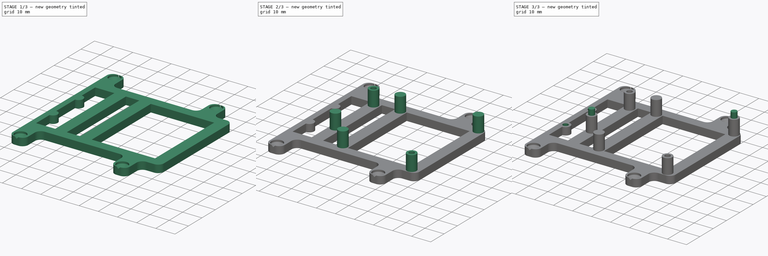
[diagram: build sequence overview — one tinted view per stage of 3, left to right]
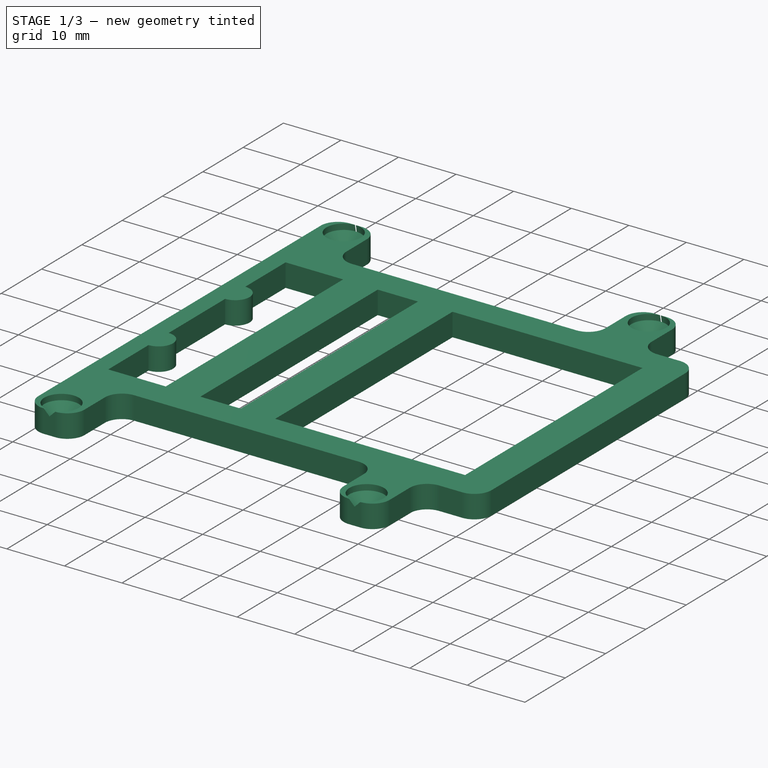
[diagram: stage 1 of 3 — iso view after this stage's code; geometry added in this stage tinted green]
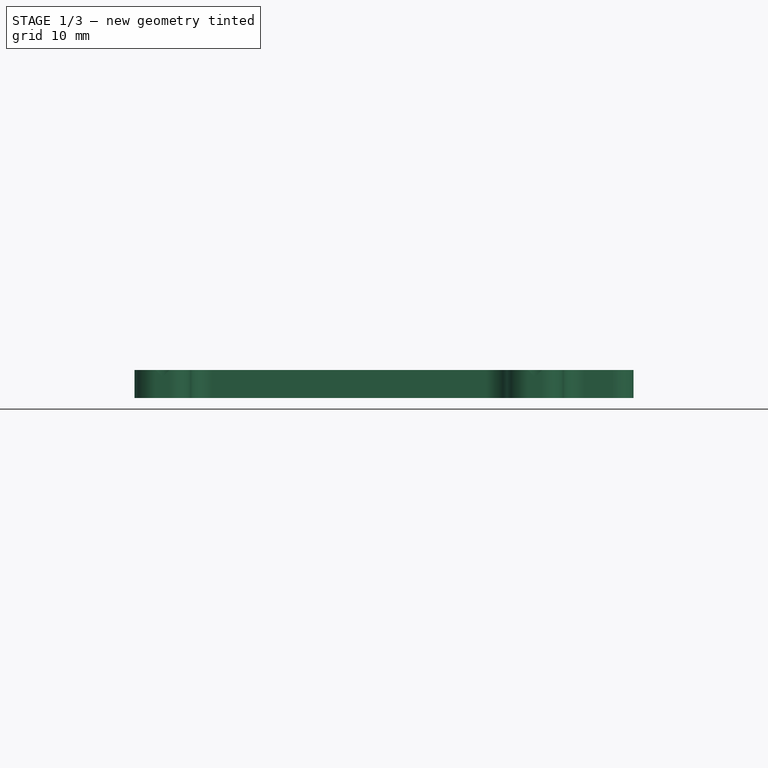
[diagram: stage 1 of 3 — front view after this stage's code; geometry added in this stage tinted green]
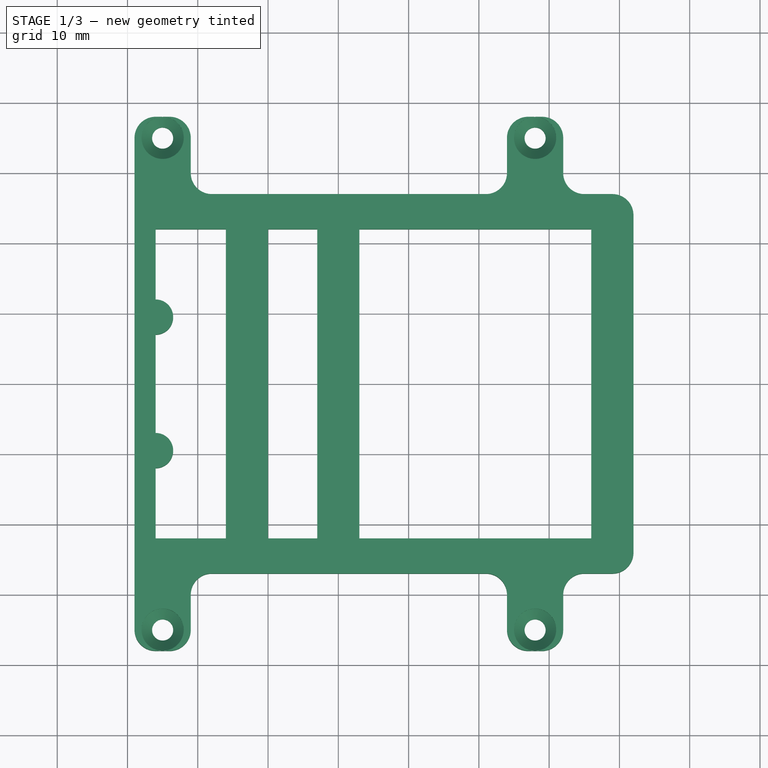
[diagram: stage 1 of 3 — top view after this stage's code; geometry added in this stage tinted green]
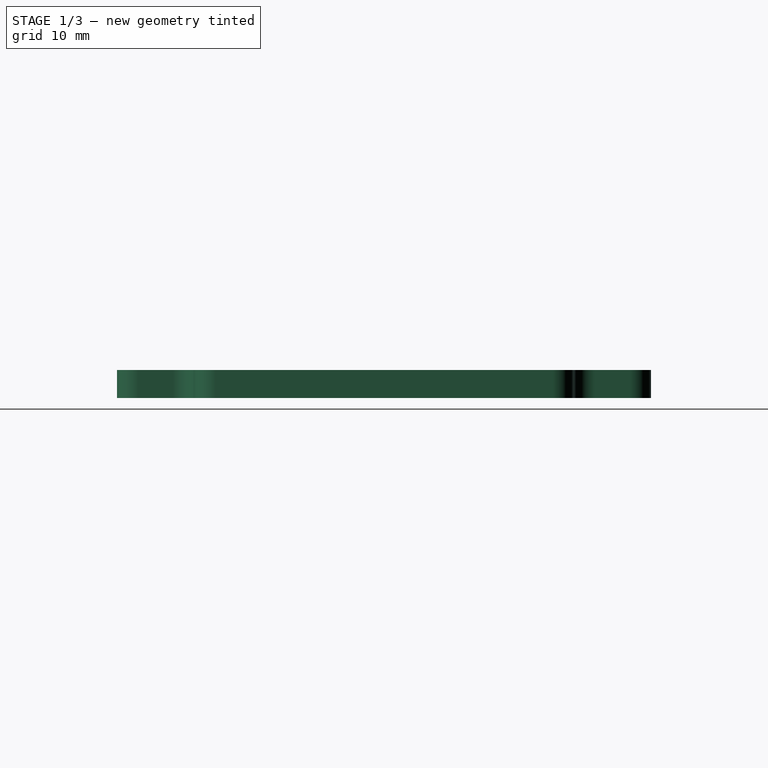
[diagram: stage 1 of 3 — right view after this stage's code; geometry added in this stage tinted green]
FCSTD DOCUMENT  (FreeCAD 0.21R33771 (Git))
Label: електронен блок (нов)
License: All rights reserved
LicenseURL: https://en.wikipedia.org/wiki/All_rights_reserved
objects: Sketcher::SketchObject×6, PartDesign::Pad×3, PartDesign::Pocket×2, PartDesign::Hole×1, PartDesign::Body×1
note: 19 computed .brp shape members not serialized (recipe doc carries the construction recipe); baked Part::Feature solids carry a one-line shape summary decoded from their .brp

FEATURE [Sketcher::SketchObject] Sketch  label="основа - чертеж"
  FullyConstrained = true
  MapMode = 5
  Support = -> [XY_Plane]
  sketch-geometry (48):
    g0: LineSegment StartX=42 StartY=-24 StartZ=0 EndX=42 EndY=24 EndZ=0
    g1: LineSegment StartX=39 StartY=27 StartZ=0 EndX=35 EndY=27 EndZ=0
    g2: LineSegment StartX=32 StartY=30 StartZ=0 EndX=32 EndY=35 EndZ=0
    g3: LineSegment StartX=29 StartY=38 StartZ=0 EndX=27 EndY=38 EndZ=0
    g4: LineSegment StartX=-29 StartY=35 StartZ=0 EndX=-29 EndY=-35 EndZ=0
    g5: LineSegment StartX=-26 StartY=-38 StartZ=0 EndX=-24 EndY=-38 EndZ=0
    g6: LineSegment StartX=32 StartY=-35 StartZ=0 EndX=32 EndY=-30 EndZ=0
    g7: LineSegment StartX=35 StartY=-27 StartZ=0 EndX=39 EndY=-27 EndZ=0
    g8: ArcOfCircle CenterX=29 CenterY=35 CenterZ=0 NormalX=0 NormalY=0 NormalZ=1 AngleXU=0 Radius=3 StartAngle=2e-16 EndAngle=1.5708
    g9: ArcOfCircle CenterX=-26 CenterY=35 CenterZ=0 NormalX=0 NormalY=0 NormalZ=1 AngleXU=0 Radius=3 StartAngle=1.5708 EndAngle=3.14159
    g10: ArcOfCircle CenterX=35 CenterY=30 CenterZ=0 NormalX=0 NormalY=0 NormalZ=1 AngleXU=0 Radius=3 StartAngle=3.14159 EndAngle=4.71239
    g11: ArcOfCircle CenterX=39 CenterY=24 CenterZ=0 NormalX=0 NormalY=0 NormalZ=1 AngleXU=0 Radius=3 StartAngle=1e-16 EndAngle=1.5708
    g12: ArcOfCircle CenterX=39 CenterY=-24 CenterZ=0 NormalX=0 NormalY=0 NormalZ=1 AngleXU=0 Radius=3 StartAngle=4.71239 EndAngle=6.28319
    g13: ArcOfCircle CenterX=35 CenterY=-30 CenterZ=0 NormalX=0 NormalY=0 NormalZ=1 AngleXU=0 Radius=3 StartAngle=1.5708 EndAngle=3.14159
    g14: ArcOfCircle CenterX=29 CenterY=-35 CenterZ=0 NormalX=0 NormalY=0 NormalZ=1 AngleXU=0 Radius=3 StartAngle=4.71239 EndAngle=6.28319
    g15: ArcOfCircle CenterX=-26 CenterY=-35 CenterZ=0 NormalX=0 NormalY=0 NormalZ=1 AngleXU=0 Radius=3 StartAngle=3.14159 EndAngle=4.71239
    g16: LineSegment StartX=-21 StartY=35 StartZ=0 EndX=-21 EndY=30 EndZ=0
    g17: LineSegment StartX=-18 StartY=27 StartZ=0 EndX=21 EndY=27 EndZ=0
    g18: LineSegment StartX=24 StartY=30 StartZ=0 EndX=24 EndY=35 EndZ=0
    g19: LineSegment StartX=-24 StartY=38 StartZ=0 EndX=-26 EndY=38 EndZ=0
    g20: LineSegment StartX=-21 StartY=-35 StartZ=0 EndX=-21 EndY=-30 EndZ=0
    g21: LineSegment StartX=-18 StartY=-27 StartZ=0 EndX=21 EndY=-27 EndZ=0
    g22: LineSegment StartX=24 StartY=-30 StartZ=0 EndX=24 EndY=-35 EndZ=0
    g23: LineSegment StartX=27 StartY=-38 StartZ=0 EndX=29 EndY=-38 EndZ=0
    g24: ArcOfCircle CenterX=-24 CenterY=35 CenterZ=0 NormalX=0 NormalY=0 NormalZ=1 AngleXU=0 Radius=3 StartAngle=-9e-16 EndAngle=1.5708
    g25: ArcOfCircle CenterX=27 CenterY=35 CenterZ=0 NormalX=0 NormalY=0 NormalZ=1 AngleXU=0 Radius=3 StartAngle=1.5708 EndAngle=3.14159
    g26: ArcOfCircle CenterX=-24 CenterY=-35 CenterZ=0 NormalX=0 NormalY=0 NormalZ=1 AngleXU=0 Radius=3 StartAngle=4.71239 EndAngle=6.28319
    g27: ArcOfCircle CenterX=27 CenterY=-35 CenterZ=0 NormalX=0 NormalY=0 NormalZ=1 AngleXU=0 Radius=3 StartAngle=3.14159 EndAngle=4.71239
    g28: ArcOfCircle CenterX=21 CenterY=-30 CenterZ=0 NormalX=0 NormalY=0 NormalZ=1 AngleXU=0 Radius=3 StartAngle=1e-16 EndAngle=1.5708
    g29: ArcOfCircle CenterX=-18 CenterY=-30 CenterZ=0 NormalX=0 NormalY=0 NormalZ=1 AngleXU=0 Radius=3 StartAngle=1.5708 EndAngle=3.14159
    g30: ArcOfCircle CenterX=-18 CenterY=30 CenterZ=0 NormalX=0 NormalY=0 NormalZ=1 AngleXU=0 Radius=3 StartAngle=3.14159 EndAngle=4.71239
    g31: ArcOfCircle CenterX=21 CenterY=30 CenterZ=0 NormalX=0 NormalY=0 NormalZ=1 AngleXU=0 Radius=3 StartAngle=4.71239 EndAngle=6.28319
    g32: LineSegment StartX=-16 StartY=-22 StartZ=0 EndX=-16 EndY=22 EndZ=0
    g33: LineSegment StartX=-16 StartY=22 StartZ=0 EndX=-26 EndY=22 EndZ=0
    g34: LineSegment StartX=-26 StartY=22 StartZ=0 EndX=-26 EndY=12 EndZ=0
    g35: LineSegment StartX=-26 StartY=-22 StartZ=0 EndX=-16 EndY=-22 EndZ=0
    g36: ArcOfCircle CenterX=-26 CenterY=9.5 CenterZ=0 NormalX=0 NormalY=0 NormalZ=1 AngleXU=0 Radius=2.5 StartAngle=4.71239 EndAngle=7.85398
    g37: ArcOfCircle CenterX=-26 CenterY=-9.5 CenterZ=0 NormalX=0 NormalY=0 NormalZ=1 AngleXU=0 Radius=2.5 StartAngle=4.71239 EndAngle=7.85398
    g38: LineSegment StartX=-26 StartY=7 StartZ=0 EndX=-26 EndY=-7 EndZ=0
    g39: LineSegment StartX=-26 StartY=-12 StartZ=0 EndX=-26 EndY=-22 EndZ=0
    g40: LineSegment StartX=-10 StartY=-22 StartZ=0 EndX=-10 EndY=22 EndZ=0
    g41: LineSegment StartX=-10 StartY=22 StartZ=0 EndX=-3 EndY=22 EndZ=0
    g42: LineSegment StartX=-3 StartY=22 StartZ=0 EndX=-3 EndY=-22 EndZ=0
    g43: LineSegment StartX=-3 StartY=-22 StartZ=0 EndX=-10 EndY=-22 EndZ=0
    g44: LineSegment StartX=36 StartY=-22 StartZ=0 EndX=36 EndY=22 EndZ=0
    g45: LineSegment StartX=36 StartY=22 StartZ=0 EndX=3 EndY=22 EndZ=0
    g46: LineSegment StartX=3 StartY=22 StartZ=0 EndX=3 EndY=-22 EndZ=0
    g47: LineSegment StartX=3 StartY=-22 StartZ=0 EndX=36 EndY=-22 EndZ=0
  constraints (132):
    c: Vertical(g0)
    c: Horizontal(g1)
    c: Vertical(g2)
    c: Horizontal(g3)
    c: Vertical(g4)
    c: Horizontal(g5)
    c: Vertical(g6)
    c: Horizontal(g7)
    c: Tangent(g3,g8) = -1.5708
    c: Tangent(g2,g8) = -1.5708
    c: Radius(g8) = 3
    c: DistanceX(g-1,g2) = 32
    c: DistanceY(g-1,g3) = 38
    c: Tangent(g4,g9) = -1.5708
    c: Coincident(g19,g9) = -1.5708
    c: Radius(g9) = 3
    c: Tangent(g2,g10) = 1.5708
    c: Tangent(g1,g10) = 1.5708
    c: Radius(g10) = 3
    c: DistanceY(g-1,g1) = 27
    c: Tangent(g1,g11) = -1.5708
    c: Tangent(g0,g11) = -1.5708
    c: Radius(g11) = 3
    c: DistanceX(g-1,g0) = 42
    c: Tangent(g7,g12) = -1.5708
    c: Tangent(g0,g12) = -1.5708
    c: Tangent(g7,g13) = 1.5708
    c: Tangent(g6,g13) = 1.5708
    c: Radius(g12) = 3
    c: Radius(g13) = 3
    c: Symmetric(g7,g1,g-1)
    c: Coincident(g23,g14) = -1.5708
    c: Tangent(g6,g14) = -1.5708
    c: Radius(g14) = 3
    c: Tangent(g5,g15) = -1.5708
    c: Radius(g15) = 3
    c: Vertical(g16)
    c: Horizontal(g17)
    c: Vertical(g18)
    c: Vertical(g20)
    c: Horizontal(g21)
    c: Vertical(g22)
    c: Tangent(g19,g24) = -1.5708
    c: Tangent(g16,g24) = 1.5708
    c: Radius(g24) = 3
    c: Tangent(g18,g25) = 1.5708
    c: Tangent(g3,g25) = -1.5708
    c: Tangent(g5,g26) = -1.5708
    c: Tangent(g20,g26) = -1.5708
    c: Tangent(g22,g27) = -1.5708
    c: Tangent(g23,g27) = -1.5708
    c: Tangent(g22,g28) = 1.5708
    c: Tangent(g21,g28) = 1.5708
    c: Tangent(g20,g29) = 1.5708
    c: Tangent(g21,g29) = 1.5708
    c: Tangent(g16,g30) = -1.5708
    c: Tangent(g17,g30) = -1.5708
    c: Tangent(g17,g31) = -1.5708
    c: Tangent(g18,g31) = -1.5708
    c: Horizontal(g19)
    c: DistanceY(g-1,g17) = 27
    c: Radius(g25) = 3
    c: Radius(g31) = 3
    c: Radius(g30) = 3
    c: DistanceX(g18,g2) = 8
    c: DistanceX(g4,g16) = 8
    c: DistanceY(g19) = 38
    c: DistanceY(g5,g-1) = 38
    c: Radius(g26) = 3
    c: DistanceX(g22,g6) = 8
    c: Horizontal(g23)
    c: Radius(g27) = 3
    c: Radius(g29) = 3
    c: DistanceY(g21,g-1) = 27
    c: Radius(g28) = 3
    c: DistanceY(g23,g-1) = 38
    c: DistanceX(g4,g-1) = 29
    c: Equal(g19,g5)
    c: DistanceX(g-1,g14) = 29
    c: Coincident(g32,g33)
    c: Coincident(g33,g34)
    c: Coincident(g39,g35)
    c: Coincident(g35,g32)
    c: Horizontal(g33)
    c: Horizontal(g35)
    c: Vertical(g32)
    c: Vertical(g34)
    c: DistanceY(g-1,g33) = 22
    c: DistanceX(g4,g33) = 3
    c: PointOnObject(g36,g34)
    c: PointOnObject(g37,g34)
    c: Diameter(g37) = 5
    c: Diameter(g36) = 5
    c: DistanceY(g-1,g36) = 9.5
    c: DistanceY(g37,g-1) = 9.5
    c: Coincident(g34,g36)
    c: Coincident(g38,g36)
    c: Coincident(g38,g37)
    c: Coincident(g39,g37)
    c: Vertical(g39)
    c: Coincident(g4,g15)
    c: Coincident(g40,g41)
    c: Coincident(g41,g42)
    c: Coincident(g42,g43)
    c: Coincident(g43,g40)
    c: Horizontal(g41)
    c: Horizontal(g43)
    c: Vertical(g40)
    c: Vertical(g42)
    c: DistanceY(g-1,g41) = 22
    c: DistanceX(g33,g32) = 10
    c: DistanceX(g32,g40) = 6
    c: DistanceX(g4,g37) = 3
    c: DistanceX(g4,g37) = 3
    c: Vertical(g38)
    c: DistanceX(g41,g-1) = 3
    c: Coincident(g44,g45)
    c: Coincident(g45,g46)
    c: Coincident(g46,g47)
    c: Coincident(g47,g44)
    c: Horizontal(g45)
    c: Horizontal(g47)
    c: Vertical(g44)
    c: Vertical(g46)
    c: DistanceY(g-1,g45) = 22
    c: DistanceX(g42,g46) = 6
    c: DistanceX(g44,g0) = 6
    c: DistanceX(g20,g-1) = 21
    c: DistanceY(g4,g4) = 70
    c: DistanceY(g35,g-1) = 22
    c: DistanceY(g46,g-1) = 22
    c: DistanceY(g40,g-1) = 22
FEATURE [Sketcher::SketchObject] Sketch001  label="Крепежни отвори - чертеж"
  FullyConstrained = true
  MapMode = 5
  Placement = pos=(0,0,4) rot=(0,0,1;0rad)
  sketch-geometry (4):
    g0: Circle CenterX=-25 CenterY=35 CenterZ=0 NormalX=0 NormalY=0 NormalZ=1 AngleXU=0 Radius=1.5
    g1: Circle CenterX=28 CenterY=35 CenterZ=0 NormalX=0 NormalY=0 NormalZ=1 AngleXU=0 Radius=1.5
    g2: Circle CenterX=-25 CenterY=-35 CenterZ=0 NormalX=0 NormalY=0 NormalZ=1 AngleXU=0 Radius=1.5
    g3: Circle CenterX=28 CenterY=-35 CenterZ=0 NormalX=0 NormalY=0 NormalZ=1 AngleXU=0 Radius=1.5
  constraints (10):
    c: DistanceY(g-1,g0) = 35
    c: DistanceX(g0,g-1) = 25
    c: Symmetric(g0,g2,g-1)
    c: Diameter(g0) = 3
    c: Equal(g0,g2)
    c: Equal(g2,g3)
    c: Equal(g3,g1)
    c: DistanceX(g-1,g1) = 28
    c: Symmetric(g1,g3,g-1)
    c: DistanceY(g-1,g1) = 35
FEATURE [PartDesign::Pad] Pad  label="Основа"
  Direction = (0,0,1)
  Length = 4
  Length2 = 10
  Profile = -> Sketch
  ReferenceAxis = -> Sketch [N_Axis]
  Type = 0
FEATURE [PartDesign::Hole] Hole  label="Крепежни отвори"
  BaseFeature = -> Pad
  CustomThreadClearance = 0
  Depth = 25
  DepthType = 0
  Diameter = 3
  DrillForDepth = false
  DrillPoint = 1
  DrillPointAngle = 118
  HoleCutCountersinkAngle = 90
  HoleCutCustomValues = false
  HoleCutDepth = 1
  HoleCutDiameter = 6
  HoleCutType = 3
  ModelThread = false
  Profile = -> Sketch001
  Tapered = false
  TaperedAngle = 90
  ThreadClass = 0
  ThreadDepth = 25
  ThreadDepthType = 0
  ThreadDirection = 0
  ThreadFit = 0
  ThreadSize = 0
  ThreadType = 0
  Threaded = false
  UseCustomThreadClearance = false
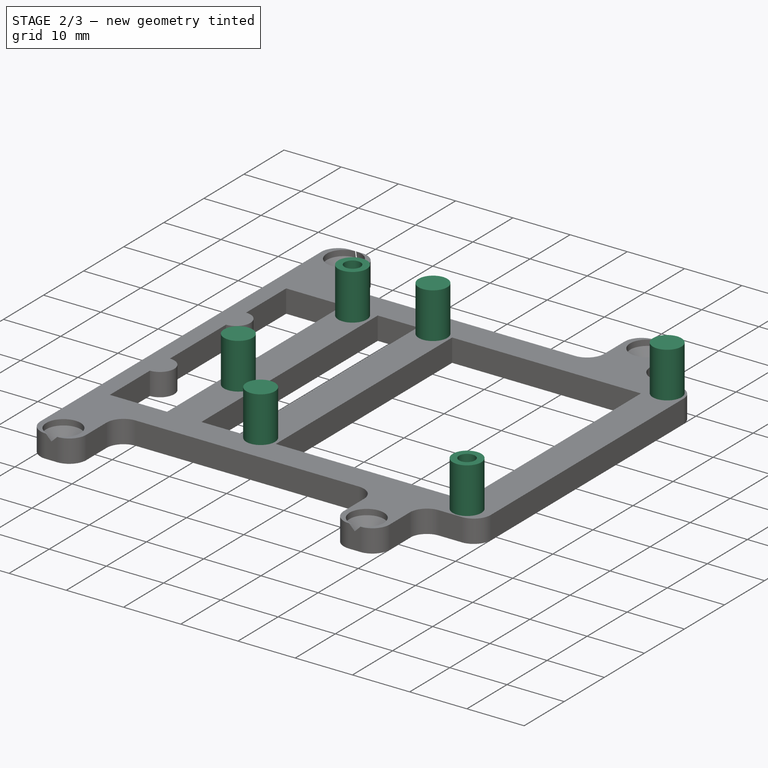
[diagram: stage 2 of 3 — iso view after this stage's code; geometry added in this stage tinted green]
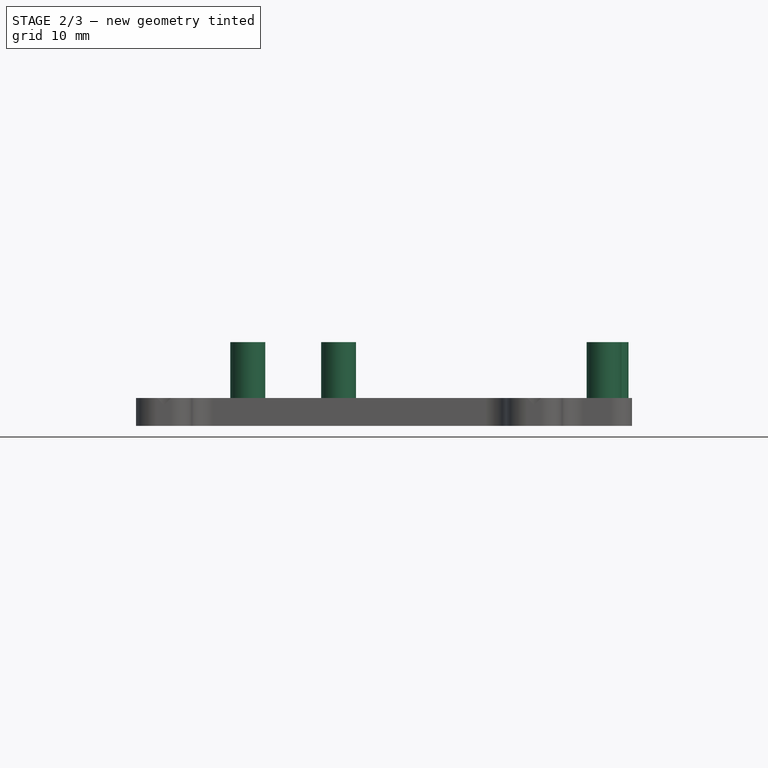
[diagram: stage 2 of 3 — front view after this stage's code; geometry added in this stage tinted green]
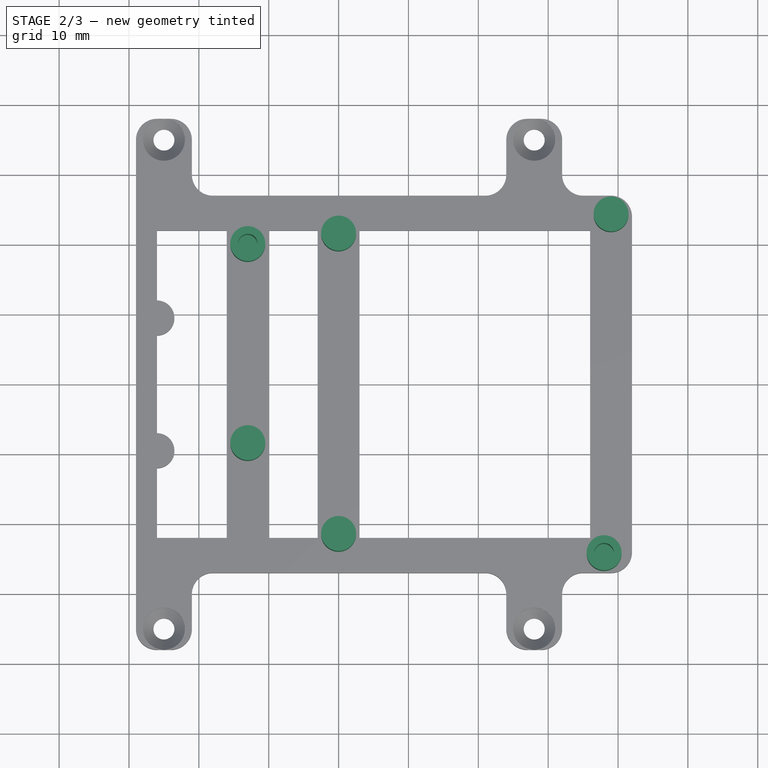
[diagram: stage 2 of 3 — top view after this stage's code; geometry added in this stage tinted green]
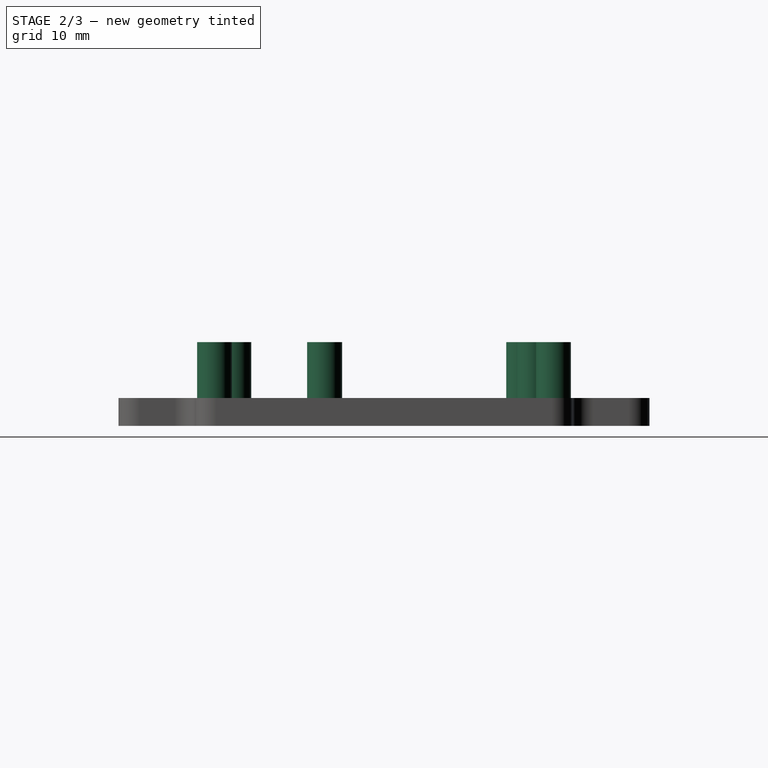
[diagram: stage 2 of 3 — right view after this stage's code; geometry added in this stage tinted green]
FEATURE [Sketcher::SketchObject] Sketch002  label="Колонки - чертеж"
  FullyConstrained = true
  MapMode = 5
  Placement = pos=(0,0,4) rot=(0,0,1;0rad)
  Support = -> [Hole]
  sketch-geometry (6):
    g0: Circle CenterX=39 CenterY=24.25 CenterZ=0 NormalX=0 NormalY=0 NormalZ=1 AngleXU=0 Radius=2.5
    g1: Circle CenterX=38 CenterY=-24.25 CenterZ=0 NormalX=0 NormalY=0 NormalZ=1 AngleXU=0 Radius=2.5
    g2: Circle CenterX=-13 CenterY=20 CenterZ=0 NormalX=0 NormalY=0 NormalZ=1 AngleXU=0 Radius=2.5
    g3: Circle CenterX=-13 CenterY=-8.5 CenterZ=0 NormalX=0 NormalY=0 NormalZ=1 AngleXU=0 Radius=2.5
    g4: Circle CenterX=0 CenterY=21.5 CenterZ=0 NormalX=0 NormalY=0 NormalZ=1 AngleXU=0 Radius=2.5
    g5: Circle CenterX=0 CenterY=-21.5 CenterZ=0 NormalX=0 NormalY=0 NormalZ=1 AngleXU=0 Radius=2.5
  constraints (18):
    c: Equal(g2,g3)
    c: Equal(g2,g1)
    c: Equal(g2,g0)
    c: Diameter(g2) = 5
    c: DistanceX(g-1,g0) = 39
    c: DistanceY(g-1,g0) = 24.25
    c: DistanceY(g1,g-1) = 24.25
    c: DistanceX(g-1,g1) = 38
    c: DistanceY(g-1,g2) = 20
    c: DistanceY(g3,g-1) = 8.5
    c: DistanceX(g2,g-1) = 13
    c: DistanceX(g3,g-1) = 13
    c: Equal(g5,g4)
    c: Diameter(g5) = 5
    c: DistanceY(g5,g-1) = 21.5
    c: DistanceY(g-1,g4) = 21.5
    c: PointOnObject(g4,g-2)
    c: PointOnObject(g5,g-2)
FEATURE [PartDesign::Pad] Pad001  label="Колонки"
  BaseFeature = -> Hole
  Direction = (0,0,1)
  Length = 8
  Length2 = 10
  Profile = -> Sketch002
  ReferenceAxis = -> Sketch002 [N_Axis]
  Type = 0
FEATURE [Sketcher::SketchObject] Sketch004  label="крепежни отвори за платката - чертеж"
  FullyConstrained = true
  MapMode = 5
  Placement = pos=(0,0,12) rot=(0,0,1;0rad)
  Support = -> [Pad001]
  sketch-geometry (2):
    g0: Circle CenterX=-13 CenterY=20 CenterZ=0 NormalX=0 NormalY=0 NormalZ=1 AngleXU=0 Radius=1.4
    g1: Circle CenterX=38 CenterY=-24.25 CenterZ=0 NormalX=0 NormalY=0 NormalZ=1 AngleXU=0 Radius=1.4
  constraints (6):
    c: DistanceX(g0,g-1) = 13
    c: DistanceY(g-1,g0) = 20
    c: Diameter(g0) = 2.8
    c: DistanceY(g1,g-1) = 24.25
    c: DistanceX(g-1,g1) = 38
    c: Diameter(g1) = 2.8
FEATURE [PartDesign::Pocket] Pocket  label="крепежни отвори за платката"
  BaseFeature = -> Pad001
  Direction = (0,0,-1)
  Length = 10
  Length2 = 5
  Profile = -> Sketch004
  ReferenceAxis = -> Sketch004 [N_Axis]
  Type = 0
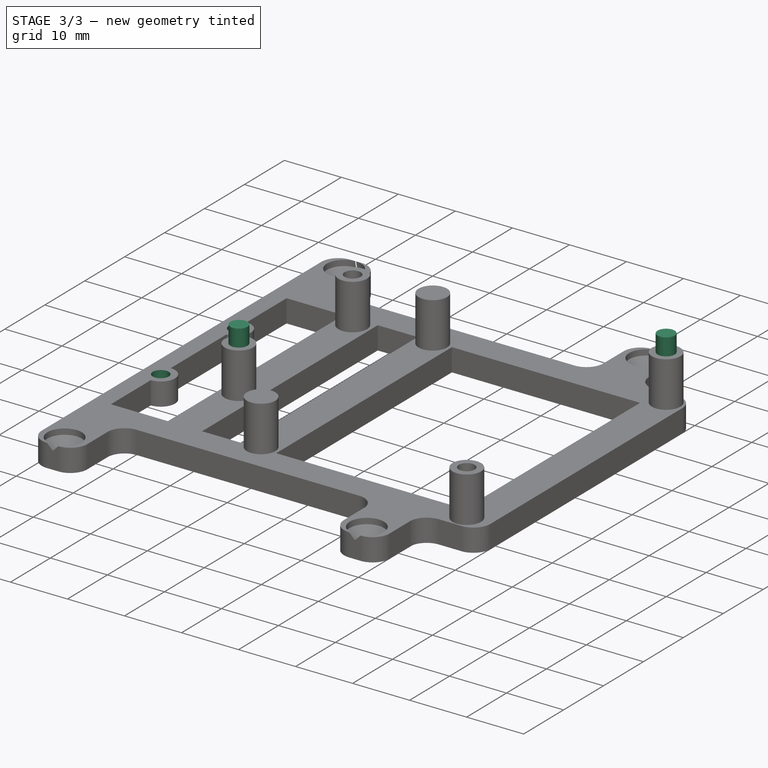
[diagram: stage 3 of 3 — iso view after this stage's code; geometry added in this stage tinted green]
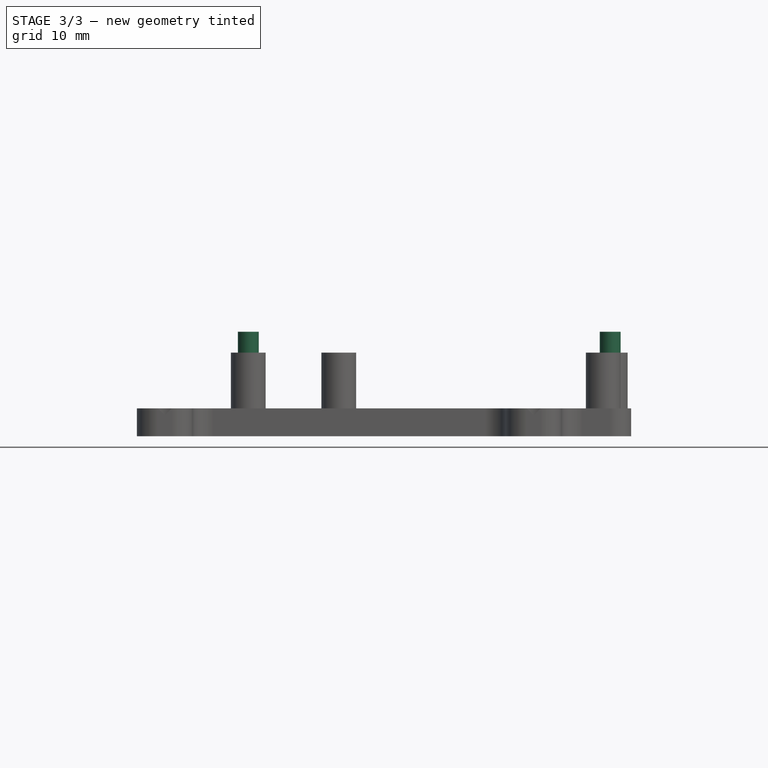
[diagram: stage 3 of 3 — front view after this stage's code; geometry added in this stage tinted green]
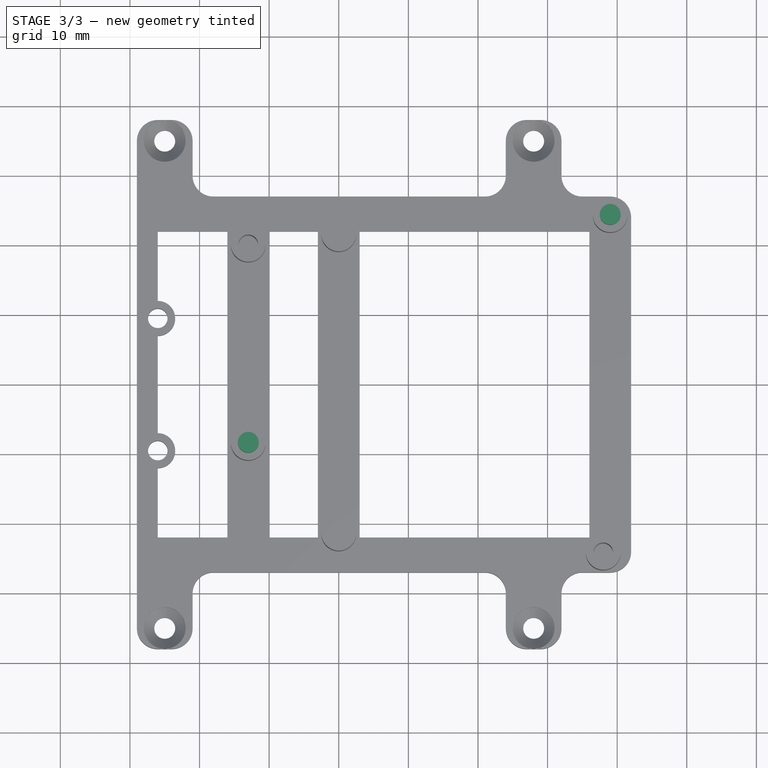
[diagram: stage 3 of 3 — top view after this stage's code; geometry added in this stage tinted green]
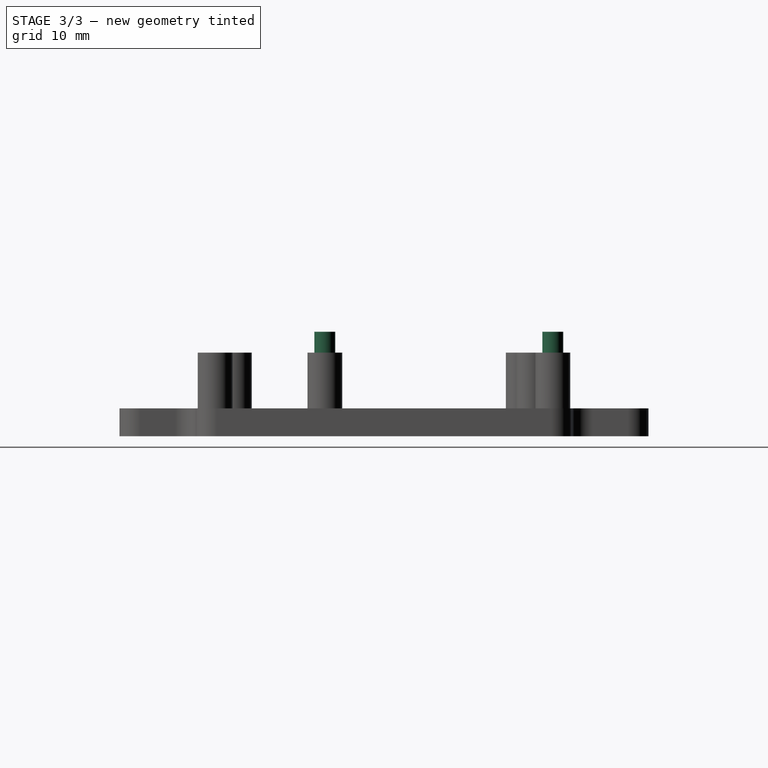
[diagram: stage 3 of 3 — right view after this stage's code; geometry added in this stage tinted green]
FEATURE [Sketcher::SketchObject] Sketch005  label="щифтове за платката - чертеж"
  FullyConstrained = true
  MapMode = 5
  Placement = pos=(0,0,12) rot=(0,0,1;0rad)
  Support = -> [Pocket]
  sketch-geometry (2):
    g0: Circle CenterX=-13 CenterY=-8.5 CenterZ=0 NormalX=0 NormalY=0 NormalZ=1 AngleXU=0 Radius=1.5
    g1: Circle CenterX=39 CenterY=24.25 CenterZ=0 NormalX=0 NormalY=0 NormalZ=1 AngleXU=0 Radius=1.5
  constraints (6):
    c: Diameter(g0) = 3
    c: DistanceY(g0,g-1) = 8.5
    c: DistanceX(g0,g-1) = 13
    c: Diameter(g1) = 3
    c: DistanceY(g-1,g1) = 24.25
    c: DistanceX(g-1,g1) = 39
FEATURE [PartDesign::Pad] Pad002  label="щифтове за платката"
  BaseFeature = -> Pocket
  Direction = (0,0,1)
  Length = 3
  Length2 = 10
  Profile = -> Sketch005
  ReferenceAxis = -> Sketch005 [N_Axis]
  Type = 0
FEATURE [Sketcher::SketchObject] Sketch006  label="крепежни отвори - чертеж"
  FullyConstrained = true
  MapMode = 5
  Placement = pos=(0,0,0) rot=(1,0,0;3.14159rad)
  Support = -> [Pad002]
  sketch-geometry (4):
    g0: Circle CenterX=-26 CenterY=9.5 CenterZ=0 NormalX=0 NormalY=0 NormalZ=1 AngleXU=0 Radius=1.4
    g1: Circle CenterX=-26 CenterY=-9.5 CenterZ=0 NormalX=0 NormalY=0 NormalZ=1 AngleXU=0 Radius=1.4
    g2: Circle CenterX=0 CenterY=21.5 CenterZ=0 NormalX=0 NormalY=0 NormalZ=1 AngleXU=0 Radius=1.4
    g3: Circle CenterX=0 CenterY=-21.5 CenterZ=0 NormalX=0 NormalY=0 NormalZ=1 AngleXU=0 Radius=1.4
  constraints (11):
    c: Equal(g0,g1)
    c: Diameter(g0) = 2.8
    c: Symmetric(g1,g0,g-1)
    c: DistanceY(g-1,g0) = 9.5
    c: DistanceX(g0,g-1) = 26
    c: PointOnObject(g2,g-2)
    c: PointOnObject(g3,g-2)
    c: Equal(g3,g2)
    c: Diameter(g3) = 2.8
    c: DistanceY(g-1,g2) = 21.5
    c: DistanceY(g3,g-1) = 21.5
FEATURE [PartDesign::Pocket] Pocket001  label="крепежни отвори"
  BaseFeature = -> Pad002
  Direction = (0,0,1)
  Length = 11
  Length2 = 5
  Profile = -> Sketch006
  ReferenceAxis = -> Sketch006 [N_Axis]
  Type = 0
FEATURE [PartDesign::Body] Body
  Group = -> [Sketch,Sketch001,Sketch002,Sketch004,Pad,Hole,Pad001,Pocket,Sketch005,Pad002,Sketch006,Pocket001]
  Origin = -> Origin
  Tip = -> Pocket001
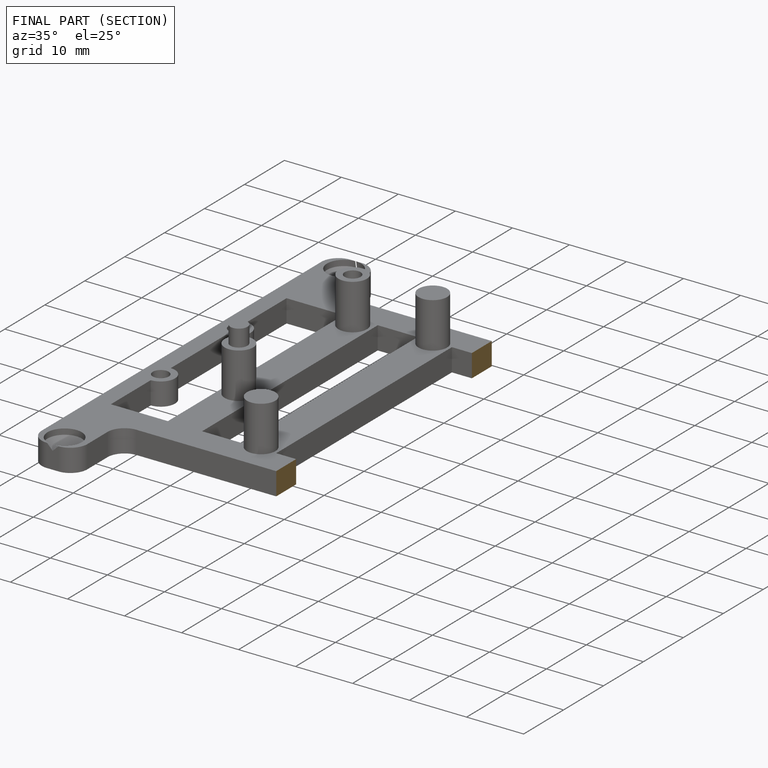
[diagram: finished part — half-section view (interior)]
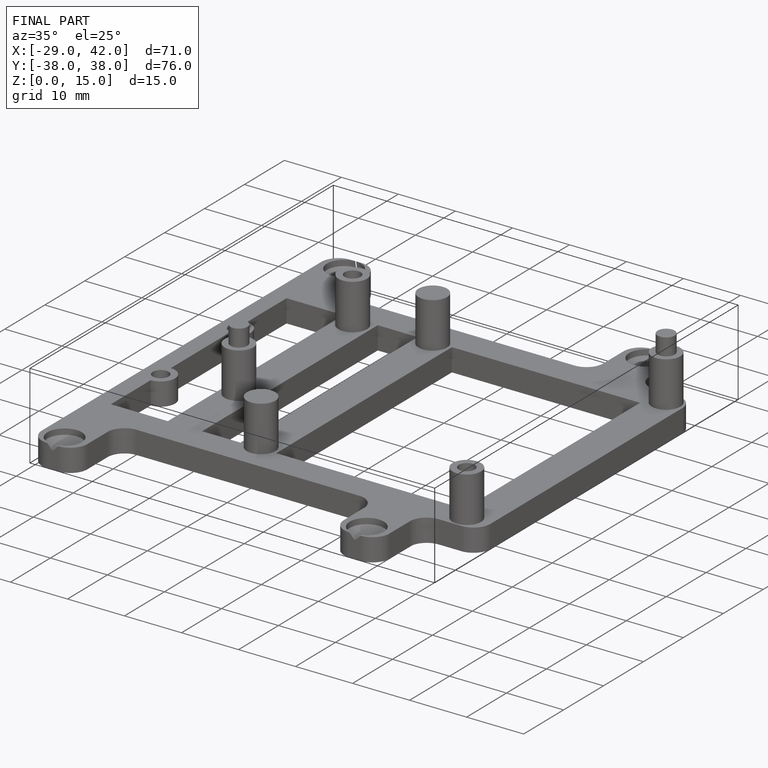
[diagram: finished part — iso view with bounding-box wireframe]
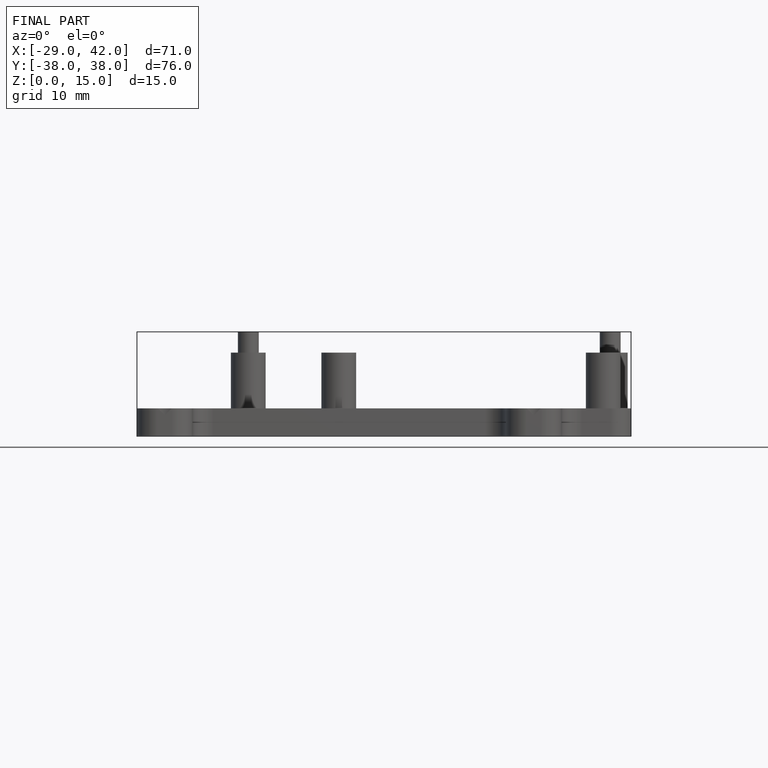
[diagram: finished part — front view with bounding-box wireframe]
